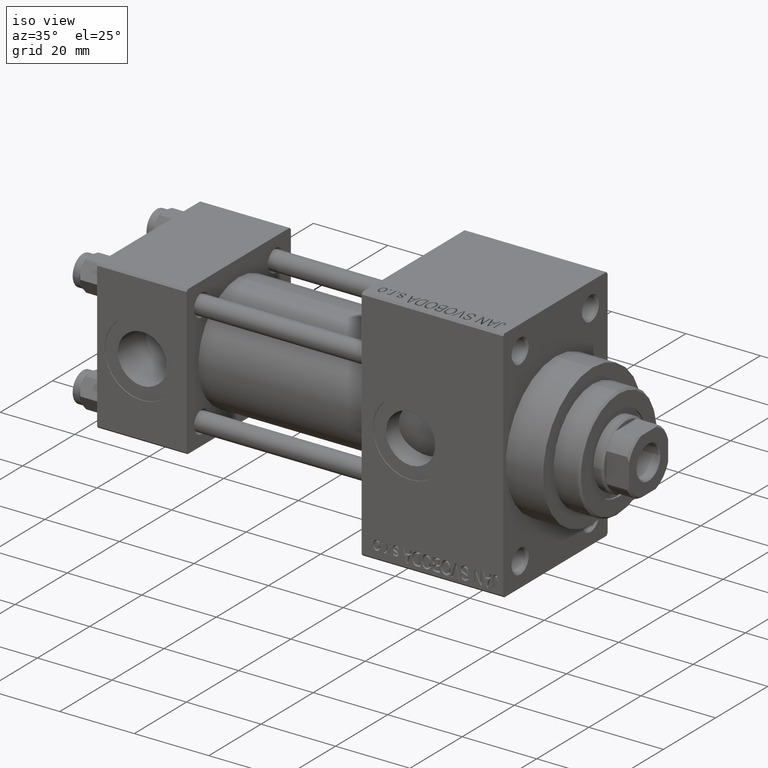
[diagram: clean part render]
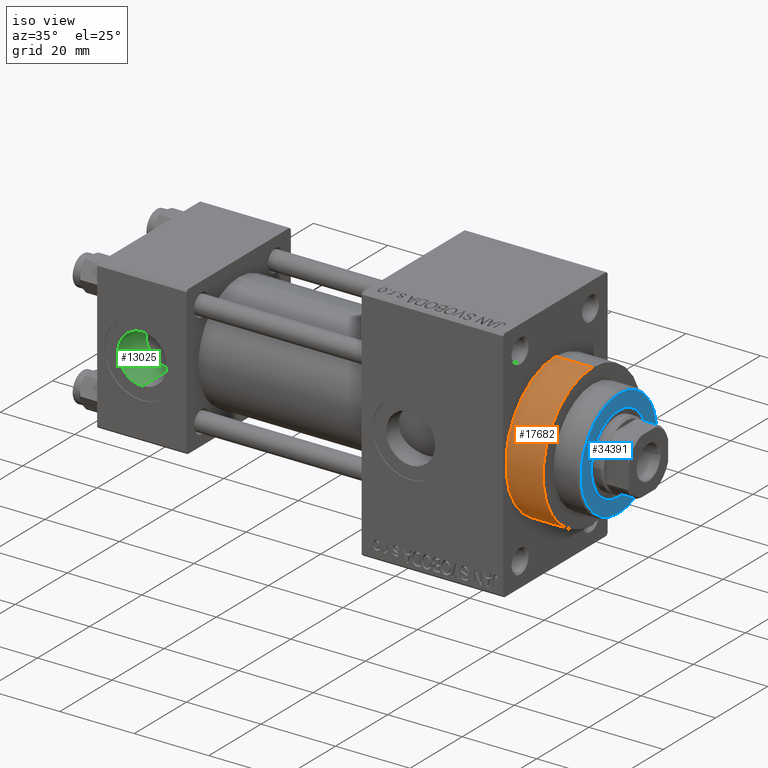
[diagram: same view with three faces highlighted in distinct colors, each labeled with its STEP entity id]
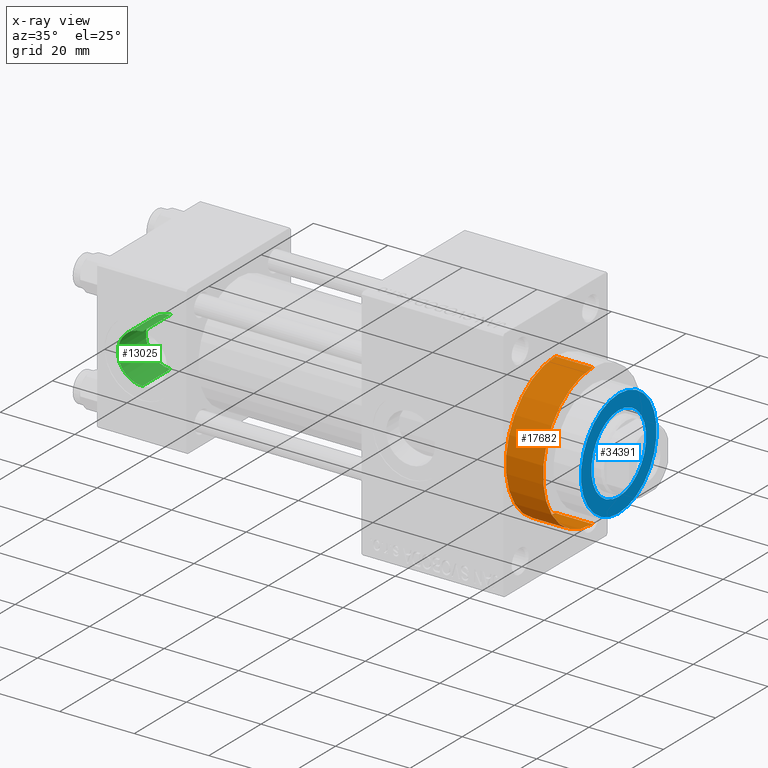
[diagram: x-ray of the same camera — body ghosted, the three highlighted faces saturated]
A machine part, iso view with three faces highlighted in distinct colors.
The next image is the same camera in x-ray (body ghosted, the three faces saturated) — at least one of them is partly hidden behind the body in this view.
Their STEP definitions:

[orange] entity #17682 — the highlighted cylindrical surface (partial cylindrical patch) has radius 19 mm, axis along (-1, -0, -0).
#1752 = ORIENTED_EDGE ( 'NONE', *, *, #17567, .F. ) ;
#2151 = FACE_OUTER_BOUND ( 'NONE', #19630, .T. ) ;
#6525 = CIRCLE ( 'NONE', #30871, 19.00000000000000000 ) ;
#7190 = LINE ( 'NONE', #40485, #38951 ) ;
#9357 = ORIENTED_EDGE ( 'NONE', *, *, #36884, .F. ) ;
#9445 = CARTESIAN_POINT ( 'NONE',  ( 119.0000000000000142, 2.326828918379970970E-15, -19.00000000000000000 ) ) ;
#9576 = CIRCLE ( 'NONE', #14912, 19.00000000000000000 ) ;
#10375 = CARTESIAN_POINT ( 'NONE',  ( 109.0000000000000142, 2.326828918379970970E-15, -19.00000000000000000 ) ) ;
#10728 = VERTEX_POINT ( 'NONE', #31251 ) ;
#11652 = EDGE_CURVE ( 'NONE', #33840, #10728, #7190, .T. ) ;
#14912 = AXIS2_PLACEMENT_3D ( 'NONE', #33801, #30469, #29997 ) ;
#15887 = VERTEX_POINT ( 'NONE', #10375 ) ;
#17567 = EDGE_CURVE ( 'NONE', #33840, #40875, #9576, .T. ) ;
#17682 = ADVANCED_FACE ( 'NONE', ( #2151 ), #34741, .T. ) ;
#17935 = EDGE_CURVE ( 'NONE', #10728, #15887, #6525, .T. ) ;
#18397 = DIRECTION ( 'NONE',  ( -1.000000000000000000, -0.000000000000000000, -0.000000000000000000 ) ) ;
#19630 = EDGE_LOOP ( 'NONE', ( #9357, #1752, #29682, #25949 ) ) ;
#22347 = DIRECTION ( 'NONE',  ( 0.000000000000000000, 0.000000000000000000, -1.000000000000000000 ) ) ;
#24515 = DIRECTION ( 'NONE',  ( -1.000000000000000000, -0.000000000000000000, -0.000000000000000000 ) ) ;
#25543 = AXIS2_PLACEMENT_3D ( 'NONE', #31648, #24515, #46144 ) ;
#25949 = ORIENTED_EDGE ( 'NONE', *, *, #17935, .T. ) ;
#26600 = DIRECTION ( 'NONE',  ( 1.000000000000000000, 0.000000000000000000, 0.000000000000000000 ) ) ;
#29682 = ORIENTED_EDGE ( 'NONE', *, *, #11652, .T. ) ;
#29997 = DIRECTION ( 'NONE',  ( 0.000000000000000000, 0.000000000000000000, -1.000000000000000000 ) ) ;
#30469 = DIRECTION ( 'NONE',  ( 1.000000000000000000, 0.000000000000000000, 0.000000000000000000 ) ) ;
#30871 = AXIS2_PLACEMENT_3D ( 'NONE', #44209, #26600, #22347 ) ;
#31100 = DIRECTION ( 'NONE',  ( -1.000000000000000000, -0.000000000000000000, -0.000000000000000000 ) ) ;
#31251 = CARTESIAN_POINT ( 'NONE',  ( 109.0000000000000142, 0.000000000000000000, 19.00000000000000000 ) ) ;
#31648 = CARTESIAN_POINT ( 'NONE',  ( 119.0000000000000142, 0.000000000000000000, 0.000000000000000000 ) ) ;
#32112 = VECTOR ( 'NONE', #31100, 1000.000000000000000 ) ;
#32907 = CARTESIAN_POINT ( 'NONE',  ( 119.0000000000000142, 2.326828918379970970E-15, -19.00000000000000000 ) ) ;
#33801 = CARTESIAN_POINT ( 'NONE',  ( 119.0000000000000142, 0.000000000000000000, 0.000000000000000000 ) ) ;
#33840 = VERTEX_POINT ( 'NONE', #45749 ) ;
#34741 = CYLINDRICAL_SURFACE ( 'NONE', #25543, 19.00000000000000000 ) ;
#36884 = EDGE_CURVE ( 'NONE', #40875, #15887, #41785, .T. ) ;
#38951 = VECTOR ( 'NONE', #18397, 1000.000000000000000 ) ;
#40485 = CARTESIAN_POINT ( 'NONE',  ( 119.0000000000000142, 0.000000000000000000, 19.00000000000000000 ) ) ;
#40875 = VERTEX_POINT ( 'NONE', #32907 ) ;
#41785 = LINE ( 'NONE', #9445, #32112 ) ;
#44209 = CARTESIAN_POINT ( 'NONE',  ( 109.0000000000000142, 0.000000000000000000, 0.000000000000000000 ) ) ;
#45749 = CARTESIAN_POINT ( 'NONE',  ( 119.0000000000000142, 0.000000000000000000, 19.00000000000000000 ) ) ;
#46144 = DIRECTION ( 'NONE',  ( 0.000000000000000000, 0.000000000000000000, 1.000000000000000000 ) ) ;

[blue] entity #34391 — the highlighted planar face has unit normal (1, -0, -0).
#2025 = DIRECTION ( 'NONE',  ( 1.000000000000000000, 0.000000000000000000, 0.000000000000000000 ) ) ;
#2573 = CIRCLE ( 'NONE', #16230, 14.49999999999999112 ) ;
#3726 = DIRECTION ( 'NONE',  ( 0.000000000000000000, 0.000000000000000000, 1.000000000000000000 ) ) ;
#4192 = CARTESIAN_POINT ( 'NONE',  ( 0.000000000000000000, 0.000000000000000000, 50.25999999999999801 ) ) ;
#5607 = FACE_BOUND ( 'NONE', #23140, .T. ) ;
#7384 = EDGE_CURVE ( 'NONE', #15122, #9621, #20744, .T. ) ;
#7952 = AXIS2_PLACEMENT_3D ( 'NONE', #4192, #3726, #32519 ) ;
#8128 = DIRECTION ( 'NONE',  ( 0.000000000000000000, 0.000000000000000000, 1.000000000000000000 ) ) ;
#9611 = EDGE_LOOP ( 'NONE', ( #30060, #32690 ) ) ;
#9621 = VERTEX_POINT ( 'NONE', #37943 ) ;
#11799 = EDGE_CURVE ( 'NONE', #15718, #40718, #41220, .T. ) ;
#12759 = CARTESIAN_POINT ( 'NONE',  ( 0.000000000000000000, 0.000000000000000000, 50.25999999999999801 ) ) ;
#13868 = AXIS2_PLACEMENT_3D ( 'NONE', #38164, #30807, #2025 ) ;
#15122 = VERTEX_POINT ( 'NONE', #18902 ) ;
#15718 = VERTEX_POINT ( 'NONE', #19686 ) ;
#15731 = DIRECTION ( 'NONE',  ( 0.000000000000000000, 0.000000000000000000, 1.000000000000000000 ) ) ;
#16230 = AXIS2_PLACEMENT_3D ( 'NONE', #36897, #15731, #44271 ) ;
#18902 = CARTESIAN_POINT ( 'NONE',  ( -10.50000000000000000, 1.285879139104720831E-15, 50.25999999999999801 ) ) ;
#19686 = CARTESIAN_POINT ( 'NONE',  ( 14.49999999999999112, 1.806354028742345013E-15, 50.25999999999999801 ) ) ;
#20035 = DIRECTION ( 'NONE',  ( 1.000000000000000000, 0.000000000000000000, 0.000000000000000000 ) ) ;
#20143 = PLANE ( 'NONE',  #35036 ) ;
#20744 = CIRCLE ( 'NONE', #13868, 10.50000000000000000 ) ;
#23140 = EDGE_LOOP ( 'NONE', ( #42203, #30607 ) ) ;
#26231 = CARTESIAN_POINT ( 'NONE',  ( 0.000000000000000000, 0.000000000000000000, 50.25999999999999801 ) ) ;
#27270 = DIRECTION ( 'NONE',  ( 0.000000000000000000, 0.000000000000000000, 1.000000000000000000 ) ) ;
#30060 = ORIENTED_EDGE ( 'NONE', *, *, #38920, .T. ) ;
#30607 = ORIENTED_EDGE ( 'NONE', *, *, #7384, .F. ) ;
#30614 = DIRECTION ( 'NONE',  ( 1.000000000000000000, 0.000000000000000000, -0.000000000000000000 ) ) ;
#30807 = DIRECTION ( 'NONE',  ( 0.000000000000000000, 0.000000000000000000, 1.000000000000000000 ) ) ;
#32519 = DIRECTION ( 'NONE',  ( 1.000000000000000000, 0.000000000000000000, 0.000000000000000000 ) ) ;
#32690 = ORIENTED_EDGE ( 'NONE', *, *, #11799, .T. ) ;
#34391 = ADVANCED_FACE ( 'NONE', ( #5607, #34651 ), #20143, .T. ) ;
#34651 = FACE_OUTER_BOUND ( 'NONE', #9611, .T. ) ;
#35036 = AXIS2_PLACEMENT_3D ( 'NONE', #12759, #27270, #30614 ) ;
#35928 = AXIS2_PLACEMENT_3D ( 'NONE', #26231, #8128, #20035 ) ;
#36897 = CARTESIAN_POINT ( 'NONE',  ( 0.000000000000000000, 0.000000000000000000, 50.25999999999999801 ) ) ;
#37593 = CIRCLE ( 'NONE', #7952, 10.50000000000000000 ) ;
#37943 = CARTESIAN_POINT ( 'NONE',  ( 10.50000000000000000, 0.000000000000000000, 50.25999999999999801 ) ) ;
#38164 = CARTESIAN_POINT ( 'NONE',  ( 0.000000000000000000, 0.000000000000000000, 50.25999999999999801 ) ) ;
#38366 = CARTESIAN_POINT ( 'NONE',  ( -14.49999999999999112, 0.000000000000000000, 50.25999999999999801 ) ) ;
#38920 = EDGE_CURVE ( 'NONE', #40718, #15718, #2573, .T. ) ;
#40718 = VERTEX_POINT ( 'NONE', #38366 ) ;
#41220 = CIRCLE ( 'NONE', #35928, 14.49999999999999112 ) ;
#42203 = ORIENTED_EDGE ( 'NONE', *, *, #43579, .F. ) ;
#43579 = EDGE_CURVE ( 'NONE', #9621, #15122, #37593, .T. ) ;
#44271 = DIRECTION ( 'NONE',  ( 1.000000000000000000, 0.000000000000000000, 0.000000000000000000 ) ) ;

[green] entity #13025 — the highlighted cylindrical surface (edge-blend (fillet) strip) has radius 6.58 mm, axis along (-0, -1, -0).
#2238 = DIRECTION ( 'NONE',  ( 0.000000000000000000, -1.000000000000000000, -8.673617379884036705E-17 ) ) ;
#2249 = EDGE_CURVE ( 'NONE', #43097, #31573, #15229, .T. ) ;
#4093 = VECTOR ( 'NONE', #32350, 1000.000000000000000 ) ;
#4760 = CARTESIAN_POINT ( 'NONE',  ( 12.00000000000000000, -9.100000000000004974, -7.892991815694479182E-16 ) ) ;
#6152 = ORIENTED_EDGE ( 'NONE', *, *, #40036, .T. ) ;
#7185 = LINE ( 'NONE', #39075, #22684 ) ;
#11912 = DIRECTION ( 'NONE',  ( 0.000000000000000000, 0.000000000000000000, -1.000000000000000000 ) ) ;
#12051 = CARTESIAN_POINT ( 'NONE',  ( 12.00000000000000000, -9.039999999999977831, 6.579999999999997407 ) ) ;
#13025 = ADVANCED_FACE ( 'NONE', ( #19057 ), #19529, .F. ) ;
#14149 = ORIENTED_EDGE ( 'NONE', *, *, #22756, .F. ) ;
#14451 = AXIS2_PLACEMENT_3D ( 'NONE', #21836, #26096, #37019 ) ;
#15229 = CIRCLE ( 'NONE', #14451, 6.579999999999998295 ) ;
#16739 = CIRCLE ( 'NONE', #30383, 6.579999999999998295 ) ;
#17794 = VERTEX_POINT ( 'NONE', #32108 ) ;
#18501 = EDGE_LOOP ( 'NONE', ( #44836, #6152, #32622, #14149 ) ) ;
#19057 = FACE_OUTER_BOUND ( 'NONE', #18501, .T. ) ;
#19529 = CYLINDRICAL_SURFACE ( 'NONE', #37478, 6.579999999999998295 ) ;
#19861 = CARTESIAN_POINT ( 'NONE',  ( 12.00000000000000000, -19.80000000000000426, -1.717376241217039812E-15 ) ) ;
#21836 = CARTESIAN_POINT ( 'NONE',  ( 12.00000000000000000, -9.039999999999977831, -7.840950111415154262E-16 ) ) ;
#22684 = VECTOR ( 'NONE', #46914, 1000.000000000000000 ) ;
#22756 = EDGE_CURVE ( 'NONE', #43097, #17794, #7185, .T. ) ;
#23499 = CARTESIAN_POINT ( 'NONE',  ( 12.00000000000000000, -19.80000000000000426, 6.579999999999996518 ) ) ;
#26096 = DIRECTION ( 'NONE',  ( -0.000000000000000000, 1.000000000000000000, 8.673617379884039170E-17 ) ) ;
#27133 = CARTESIAN_POINT ( 'NONE',  ( 12.00000000000000000, -9.039999999999977831, -6.579999999999999183 ) ) ;
#27492 = EDGE_CURVE ( 'NONE', #42377, #17794, #16739, .T. ) ;
#30383 = AXIS2_PLACEMENT_3D ( 'NONE', #19861, #2238, #46637 ) ;
#31573 = VERTEX_POINT ( 'NONE', #12051 ) ;
#32108 = CARTESIAN_POINT ( 'NONE',  ( 12.00000000000000000, -19.80000000000000426, -6.580000000000000071 ) ) ;
#32350 = DIRECTION ( 'NONE',  ( -0.000000000000000000, -1.000000000000000000, -8.673617379884036705E-17 ) ) ;
#32622 = ORIENTED_EDGE ( 'NONE', *, *, #27492, .T. ) ;
#32822 = CARTESIAN_POINT ( 'NONE',  ( 12.00000000000000000, -9.100000000000004974, 6.579999999999997407 ) ) ;
#37019 = DIRECTION ( 'NONE',  ( 0.000000000000000000, 0.000000000000000000, -1.000000000000000000 ) ) ;
#37478 = AXIS2_PLACEMENT_3D ( 'NONE', #4760, #45193, #11912 ) ;
#39075 = CARTESIAN_POINT ( 'NONE',  ( 12.00000000000000000, -9.100000000000004974, -6.579999999999999183 ) ) ;
#40036 = EDGE_CURVE ( 'NONE', #31573, #42377, #43743, .T. ) ;
#42377 = VERTEX_POINT ( 'NONE', #23499 ) ;
#43097 = VERTEX_POINT ( 'NONE', #27133 ) ;
#43743 = LINE ( 'NONE', #32822, #4093 ) ;
#44836 = ORIENTED_EDGE ( 'NONE', *, *, #2249, .T. ) ;
#45193 = DIRECTION ( 'NONE',  ( -0.000000000000000000, -1.000000000000000000, -8.673617379884036705E-17 ) ) ;
#46637 = DIRECTION ( 'NONE',  ( 0.000000000000000000, 0.000000000000000000, -1.000000000000000000 ) ) ;
#46914 = DIRECTION ( 'NONE',  ( -0.000000000000000000, -1.000000000000000000, -8.673617379884036705E-17 ) ) ;